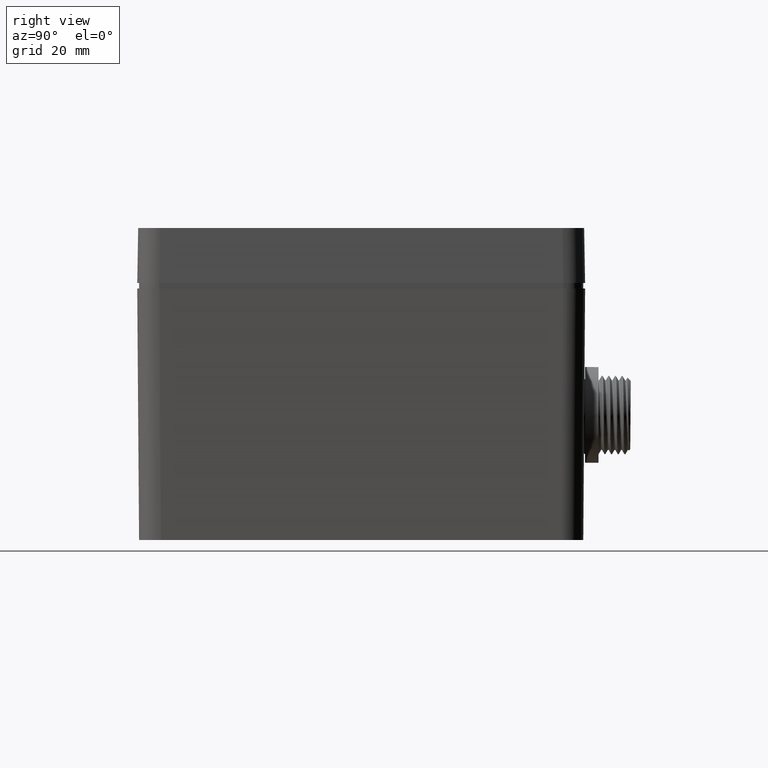
[diagram: clean part render]
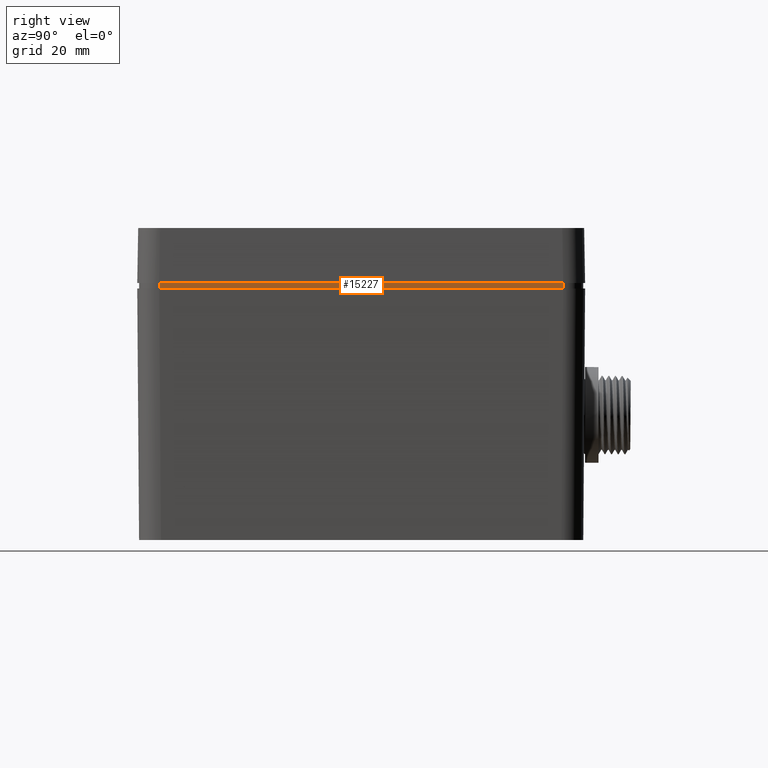
[diagram: same view with one face highlighted and labeled with its STEP entity id]
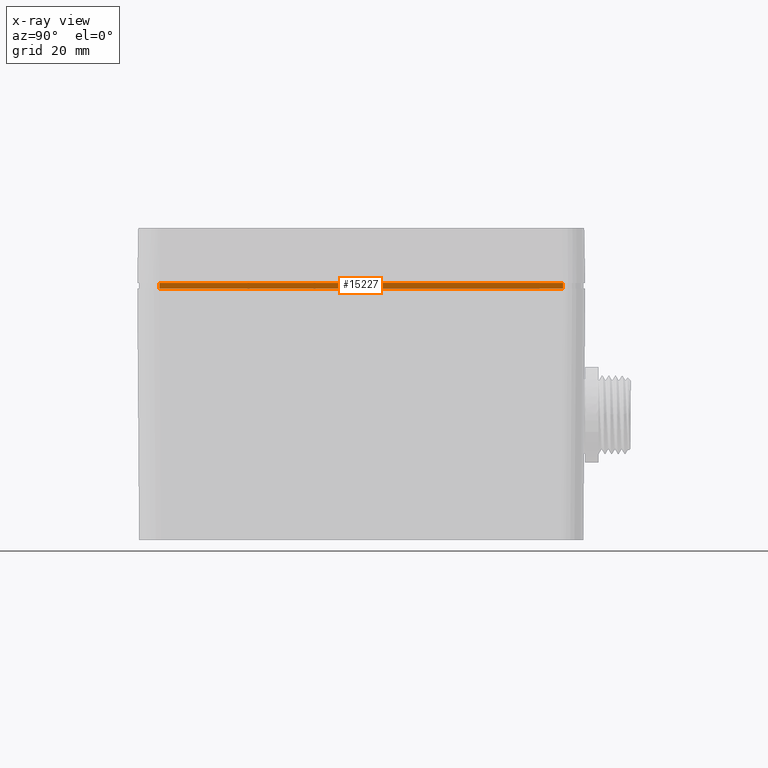
[diagram: x-ray of the same camera — body ghosted, the highlighted face saturated]
A machine part, right view. The second image highlights one B-rep face of the part: STEP entity #15227.
The next image is the same camera in x-ray: the body ghosted, the highlighted face saturated — about 0% of this face is hidden behind the body in this view.
In plain terms, the highlighted planar face has unit normal (1, -0, 0).
Its self-contained STEP definition (entity closure, byte-faithful):
#658 = CARTESIAN_POINT ( 'NONE',  ( 2.342519685039369914, -2.165354330708661568, -0.05905511811023622659 ) ) ;
#814 = CARTESIAN_POINT ( 'NONE',  ( 2.342519685039369914, -2.881889763779527769, -0.05905511811023622659 ) ) ;
#925 = CARTESIAN_POINT ( 'NONE',  ( 2.342519685039369914, -2.598425196850393970, -0.06496062992125983815 ) ) ;
#1092 = FACE_OUTER_BOUND ( 'NONE', #25593, .T. ) ;
#1268 = VERTEX_POINT ( 'NONE', #22793 ) ;
#1363 = AXIS2_PLACEMENT_3D ( 'NONE', #925, #6013, #19166 ) ;
#5042 = VECTOR ( 'NONE', #11875, 39.37007874015748143 ) ;
#5586 = ORIENTED_EDGE ( 'NONE', *, *, #25145, .T. ) ;
#5740 = VERTEX_POINT ( 'NONE', #6395 ) ;
#6013 = DIRECTION ( 'NONE',  ( 1.000000000000000000, -2.153159805333639698E-16, 0.000000000000000000 ) ) ;
#6395 = CARTESIAN_POINT ( 'NONE',  ( 2.342519685039370803, 2.165354330708661568, 0.000000000000000000 ) ) ;
#6400 = VECTOR ( 'NONE', #31822, 39.37007874015748143 ) ;
#7602 = CARTESIAN_POINT ( 'NONE',  ( 2.342519685039369914, -2.598425196850393970, 2.817218243466271259E-16 ) ) ;
#10443 = CARTESIAN_POINT ( 'NONE',  ( 2.342519685039369914, -2.165354330708661568, -0.05905511811023622659 ) ) ;
#11243 = VECTOR ( 'NONE', #30067, 39.37007874015748143 ) ;
#11307 = CARTESIAN_POINT ( 'NONE',  ( 2.342519685039369914, 2.165354330708661568, -0.06496062992125983815 ) ) ;
#11875 = DIRECTION ( 'NONE',  ( 0.000000000000000000, -1.000000000000000000, 0.000000000000000000 ) ) ;
#13356 = ORIENTED_EDGE ( 'NONE', *, *, #20650, .F. ) ;
#13418 = LINE ( 'NONE', #10443, #6400 ) ;
#14330 = VECTOR ( 'NONE', #18296, 39.37007874015748143 ) ;
#14648 = EDGE_CURVE ( 'NONE', #16207, #15515, #13418, .T. ) ;
#15227 = ADVANCED_FACE ( 'NONE', ( #1092 ), #30038, .T. ) ;
#15515 = VERTEX_POINT ( 'NONE', #31548 ) ;
#16207 = VERTEX_POINT ( 'NONE', #658 ) ;
#18296 = DIRECTION ( 'NONE',  ( -2.153159805333639698E-16, -1.000000000000000000, 0.000000000000000000 ) ) ;
#19166 = DIRECTION ( 'NONE',  ( -2.153159805333639698E-16, -1.000000000000000000, 0.000000000000000000 ) ) ;
#19256 = ORIENTED_EDGE ( 'NONE', *, *, #14648, .F. ) ;
#20650 = EDGE_CURVE ( 'NONE', #1268, #16207, #24835, .T. ) ;
#21131 = EDGE_CURVE ( 'NONE', #1268, #5740, #24984, .T. ) ;
#22793 = CARTESIAN_POINT ( 'NONE',  ( 2.342519685039369914, 2.165354330708661568, -0.05905511811023622659 ) ) ;
#24835 = LINE ( 'NONE', #814, #5042 ) ;
#24984 = LINE ( 'NONE', #11307, #11243 ) ;
#25145 = EDGE_CURVE ( 'NONE', #5740, #15515, #34083, .T. ) ;
#25593 = EDGE_LOOP ( 'NONE', ( #5586, #19256, #13356, #31070 ) ) ;
#30038 = PLANE ( 'NONE',  #1363 ) ;
#30067 = DIRECTION ( 'NONE',  ( 0.000000000000000000, 0.000000000000000000, 1.000000000000000000 ) ) ;
#31070 = ORIENTED_EDGE ( 'NONE', *, *, #21131, .T. ) ;
#31548 = CARTESIAN_POINT ( 'NONE',  ( 2.342519685039369914, -2.165354330708661568, 1.408609121733135630E-16 ) ) ;
#31822 = DIRECTION ( 'NONE',  ( 0.000000000000000000, 0.000000000000000000, 1.000000000000000000 ) ) ;
#34083 = LINE ( 'NONE', #7602, #14330 ) ;